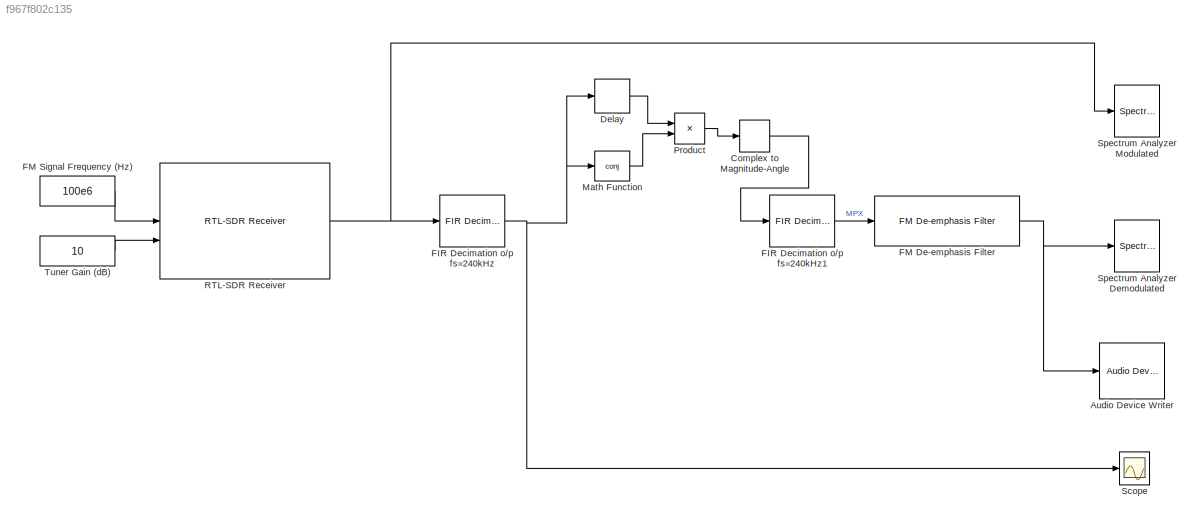
MODEL slx_f967f802c135
KIND model
CONFIG AbsTol = auto
CONFIG EnableMultiTasking = off
CONFIG FixedStep = auto
CONFIG MaxStep = auto
CONFIG MinStep = auto
CONFIG RelTol = 1e-3
CONFIG SampleTimeConstraint = Unconstrained
CONFIG SolverName = VariableStepAuto
CONFIG StartTime = 0.0
CONFIG StopTime = 10.0
BLOCK [Reference] Audio Device Writer  REF=dspsnks4/Audio Device
Writer
  LibrarySourceBlock = audiosinks/Audio Device\nWriter
  SourceBlock = dspsnks4/Audio Device\nWriter
  SourceType = Audio Device Writer
BLOCK [ComplexToMagnitudeAngle] Complex to Magnitude-Angle
  Output = Angle
BLOCK [Delay] Delay
  DelayLength = 1
  InitialCondition = 0
  InputPortMap = u0
BLOCK [Reference] FIR Decimation o//p fs=240kHz  REF=dspmlti4/FIR
Decimation
  SourceBlock = dspmlti4/FIR\nDecimation
  SourceType = FIR Decimation
  UserDataPersistent = on
BLOCK [Reference] FIR Decimation o//p fs=240kHz1  REF=dspmlti4/FIR
Decimation
  SourceBlock = dspmlti4/FIR\nDecimation
  SourceType = FIR Decimation
  UserDataPersistent = on
BLOCK [Reference] FM De-emphasis Filter  REF=rtlsdr_book_library/FM Demod Tools/FM De-emphasis Filter  (lib defined in slx_12414fe83126, slx_a1558d2e1022)
  SourceBlock = rtlsdr_book_library/FM Demod Tools/FM De-emphasis Filter
  SourceProductName = RTL-SDR Book Library
BLOCK [Constant] FM Signal Frequency (Hz)
  Value = 100e6
BLOCK [Math] Math Function
  Operator = conj
  SignedPower = on
BLOCK [Product] Product
BLOCK [Reference] RTL-SDR Receiver  REF=sdrrlib/RTL-SDR
Receiver
  SourceBlock = sdrrlib/RTL-SDR\nReceiver
  SourceType = RTL-SDR Receiver
BLOCK [Scope] Scope
  Floating = off
  NumInputPorts = 2
  ScopeSpecificationString = Simulink.scopes.TimeScopeBlockCfg('CurrentConfiguration', extmgr.ConfigurationSet(extmgr.Configuration('Core','General UI',true),extmgr.Configuration('Core','Source UI',true),extmgr.Configuration('Sources','WiredSimulink',true),extmgr.Configuration('Visuals','Time Domain',true),extmgr.Configuration('Tools','Plot Navigation',true),extmgr.Configuration('Tools','Measurements',true,'Version','2023b'))...<+19ch>
BLOCK [SpectrumAnalyzer] Spectrum Analyzer Demodulated
  AveragingMethod = Running
  AxesScaling = Manual
  DefaultConfigurationName = spbscopes.SpectrumAnalyzerBlockCfg
  GraphicalSettings = {"GraphicalSettings":{"Style":{"AxesColor":"[1 1 1]","LabelsColor":"[0.1 0.1 0.1]","LineColor":"[[0 0.447 0.741],[1 0.549 0],[0 1 1],[1 0 0],[0 1 0],[0 0 1],[1 1 0],[1 0 1],[0 1 1],[1 0 0],[0 1 0],[0 0 1],[1 1 0],[1 0 1],[0 1 1],[1 0 0],[0 1 0],[0 0 1],[1 1 0],[1 0 1],[0 1 1],[1 0 0],[0 1 0],[0 0 1],[1 1 0],[1 0 1],[0 1 1],[1 0 0],[0 1 0],[0 0 1],[1 1 0],[1 0 1],[0 1 1],[1 0 0],[0 1 0],[0 0 1],[1 ...<+1739ch>
  Method = Welch
  SampleRate = 48000
  ScopeFrameLocation = window
  ScopeSpecificationString = spbscopes.SpectrumAnalyzerBlockCfg('CurrentConfiguration', extmgr.ConfigurationSet(extmgr.Configuration('Core','General UI',true,'ShowStatusbar',false,'FigureColor',[0.941176470588235 0.941176470588235 0.941176470588235]),extmgr.Configuration('Core','Source UI',true),extmgr.Configuration('Sources','WiredSimulink',true),extmgr.Configuration('Sources','Simulink',false),extmgr.Configuration('Sources'...<+6594ch>
  ShowGrid = off
  ShowLegend = on
  Span = 400000
  StartFcn = startfcn_spectrum_analyzer;
  StartFrequency = -200000
  StopFrequency = 200000
  WasSavedAsWebScope = on
  WindowPosition = [1084 622 778 262]
  YLabel = dBm
  YLimits = [-90,25]
BLOCK [SpectrumAnalyzer] Spectrum Analyzer Modulated
  AveragingMethod = Running
  AxesScaling = Manual
  DefaultConfigurationName = spbscopes.SpectrumAnalyzerBlockCfg
  GraphicalSettings = {"GraphicalSettings":{"Style":{"AxesColor":"[1 1 1]","LabelsColor":"[0.1 0.1 0.1]","LineColor":"[[0 0.447 0.741],[1 0 1],[0 1 1],[1 0 0],[0 1 0],[0 0 1],[1 1 0],[1 0 1],[0 1 1],[1 0 0],[0 1 0],[0 0 1],[1 1 0],[1 0 1],[0 1 1],[1 0 0],[0 1 0],[0 0 1],[1 1 0],[1 0 1],[0 1 1],[1 0 0],[0 1 0],[0 0 1],[1 1 0],[1 0 1],[0 1 1],[1 0 0],[0 1 0],[0 0 1],[1 1 0],[1 0 1],[0 1 1],[1 0 0],[0 1 0],[0 0 1],[1 1 0]...<+1708ch>
  Method = Welch
  SampleRate = 240000
  ScopeFrameLocation = window
  ScopeSpecificationString = spbscopes.SpectrumAnalyzerBlockCfg('CurrentConfiguration', extmgr.ConfigurationSet(extmgr.Configuration('Core','General UI',true,'ShowStatusbar',false,'FigureColor',[0.941176470588235 0.941176470588235 0.941176470588235]),extmgr.Configuration('Core','Source UI',true),extmgr.Configuration('Sources','WiredSimulink',true),extmgr.Configuration('Visuals','Spectrum',true,'AxesProperties',struct('Color',...<+5917ch>
  ShowGrid = off
  Span = 400000
  StartFcn = startfcn_spectrum_analyzer;
  StartFrequency = -200000
  StopFrequency = 200000
  WasSavedAsWebScope = on
  WindowPosition = [528.000000,212.000000,778.000000,225.000000,]
  YLabel = dBm
  YLimits = [-69.383930992470468,32.02048051388072]
BLOCK [Constant] Tuner Gain (dB)
  Value = 10
LINE Complex to Magnitude-Angle:1 -> FIR Decimation o//p fs=240kHz1:1
LINE Delay:1 -> Product:1
LINE FIR Decimation o//p fs=240kHz1:1 -> FM De-emphasis Filter:1
NET FIR Decimation o//p fs=240kHz:1 -> Delay:1, Math Function:1, Scope:1
NET FM De-emphasis Filter:1 -> Audio Device Writer:1, Spectrum Analyzer Demodulated:1
LINE FM Signal Frequency (Hz):1 -> RTL-SDR Receiver:1
LINE Math Function:1 -> Product:2
LINE Product:1 -> Complex to Magnitude-Angle:1
NET RTL-SDR Receiver:1 -> FIR Decimation o//p fs=240kHz:1, Spectrum Analyzer Modulated:1
LINE Tuner Gain (dB):1 -> RTL-SDR Receiver:2
note: NET lines group one-source signal fan-out (src -> all destinations, sorted); 1:1 wires keep LINE
